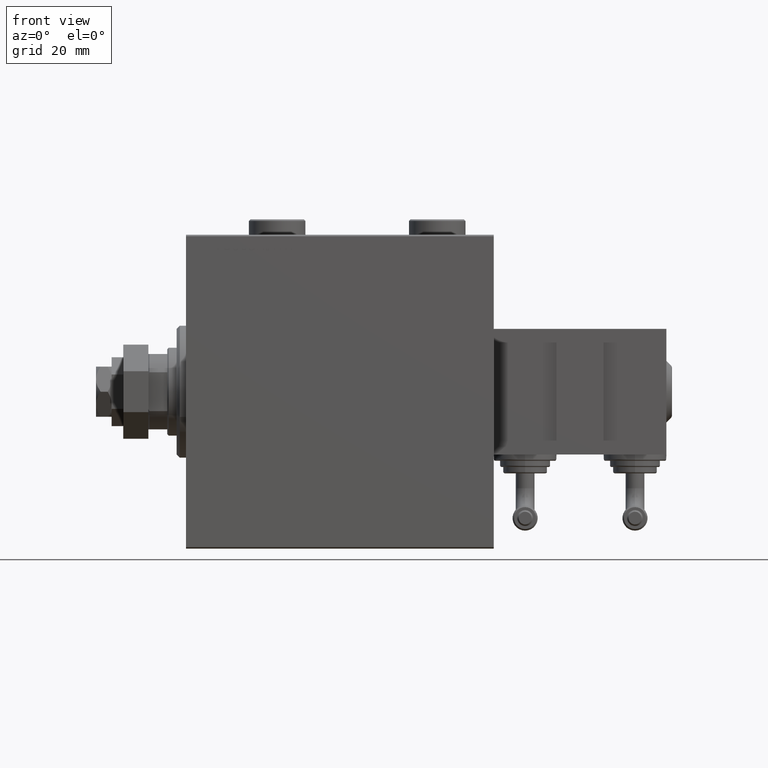
[diagram: clean part render]
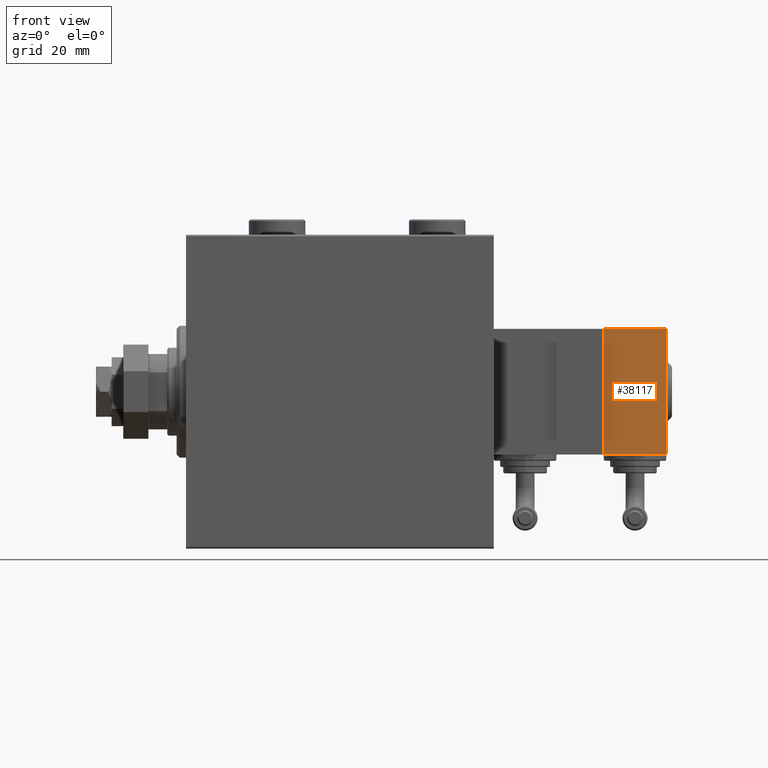
[diagram: same view with one face highlighted and labeled with its STEP entity id]
A machine part, front view. The second image highlights one B-rep face of the part: STEP entity #38117.
In plain terms, the highlighted planar face has unit normal (0, 1, 0).
Its self-contained STEP definition (entity closure, byte-faithful):
#4 = CARTESIAN_POINT ( 'NONE',  ( 20.00000000000005329, -17.49999999999996092, -9.999999999999998224 ) ) ;
#1884 = ORIENTED_EDGE ( 'NONE', *, *, #32829, .T. ) ;
#2480 = CARTESIAN_POINT ( 'NONE',  ( 0.000000000000000000, -17.49999999999996092, 0.000000000000000000 ) ) ;
#2766 = EDGE_CURVE ( 'NONE', #52359, #21873, #9499, .T. ) ;
#5535 = CARTESIAN_POINT ( 'NONE',  ( 20.00000000000005329, -17.49999999999996092, -9.999999999999998224 ) ) ;
#9499 = LINE ( 'NONE', #5535, #40840 ) ;
#10189 = AXIS2_PLACEMENT_3D ( 'NONE', #2480, #18673, #43642 ) ;
#10988 = PLANE ( 'NONE',  #10189 ) ;
#11413 = CARTESIAN_POINT ( 'NONE',  ( -19.99999999999994316, -17.49999999999996092, -9.999999999999998224 ) ) ;
#16018 = VECTOR ( 'NONE', #19253, 1000.000000000000000 ) ;
#18673 = DIRECTION ( 'NONE',  ( 0.000000000000000000, 1.000000000000000000, 0.000000000000000000 ) ) ;
#19253 = DIRECTION ( 'NONE',  ( -1.000000000000000000, -0.000000000000000000, -0.000000000000000000 ) ) ;
#20103 = VERTEX_POINT ( 'NONE', #42692 ) ;
#20306 = LINE ( 'NONE', #48732, #21507 ) ;
#20575 = DIRECTION ( 'NONE',  ( -0.000000000000000000, -0.000000000000000000, -1.000000000000000000 ) ) ;
#20651 = DIRECTION ( 'NONE',  ( 0.000000000000000000, 0.000000000000000000, 1.000000000000000000 ) ) ;
#21507 = VECTOR ( 'NONE', #20575, 1000.000000000000000 ) ;
#21873 = VERTEX_POINT ( 'NONE', #35779 ) ;
#23607 = VECTOR ( 'NONE', #35321, 1000.000000000000000 ) ;
#25207 = ORIENTED_EDGE ( 'NONE', *, *, #51027, .T. ) ;
#27868 = LINE ( 'NONE', #11413, #23607 ) ;
#30164 = EDGE_CURVE ( 'NONE', #42835, #52359, #27868, .T. ) ;
#32829 = EDGE_CURVE ( 'NONE', #21873, #20103, #38932, .T. ) ;
#35321 = DIRECTION ( 'NONE',  ( 1.000000000000000000, 0.000000000000000000, 0.000000000000000000 ) ) ;
#35779 = CARTESIAN_POINT ( 'NONE',  ( 20.00000000000005329, -17.49999999999996092, 10.00000000000000000 ) ) ;
#38018 = EDGE_LOOP ( 'NONE', ( #46313, #1884, #25207, #44557 ) ) ;
#38117 = ADVANCED_FACE ( 'NONE', ( #47361 ), #10988, .F. ) ;
#38695 = CARTESIAN_POINT ( 'NONE',  ( -19.99999999999994316, -17.49999999999996092, -9.999999999999998224 ) ) ;
#38932 = LINE ( 'NONE', #50887, #16018 ) ;
#40840 = VECTOR ( 'NONE', #20651, 1000.000000000000000 ) ;
#42692 = CARTESIAN_POINT ( 'NONE',  ( -19.99999999999994316, -17.49999999999996092, 10.00000000000000000 ) ) ;
#42835 = VERTEX_POINT ( 'NONE', #38695 ) ;
#43642 = DIRECTION ( 'NONE',  ( 0.000000000000000000, -0.000000000000000000, 1.000000000000000000 ) ) ;
#44557 = ORIENTED_EDGE ( 'NONE', *, *, #30164, .T. ) ;
#46313 = ORIENTED_EDGE ( 'NONE', *, *, #2766, .T. ) ;
#47361 = FACE_OUTER_BOUND ( 'NONE', #38018, .T. ) ;
#48732 = CARTESIAN_POINT ( 'NONE',  ( -19.99999999999994316, -17.49999999999996092, -9.999999999999998224 ) ) ;
#50887 = CARTESIAN_POINT ( 'NONE',  ( -19.99999999999994316, -17.49999999999996092, 10.00000000000000000 ) ) ;
#51027 = EDGE_CURVE ( 'NONE', #20103, #42835, #20306, .T. ) ;
#52359 = VERTEX_POINT ( 'NONE', #4 ) ;